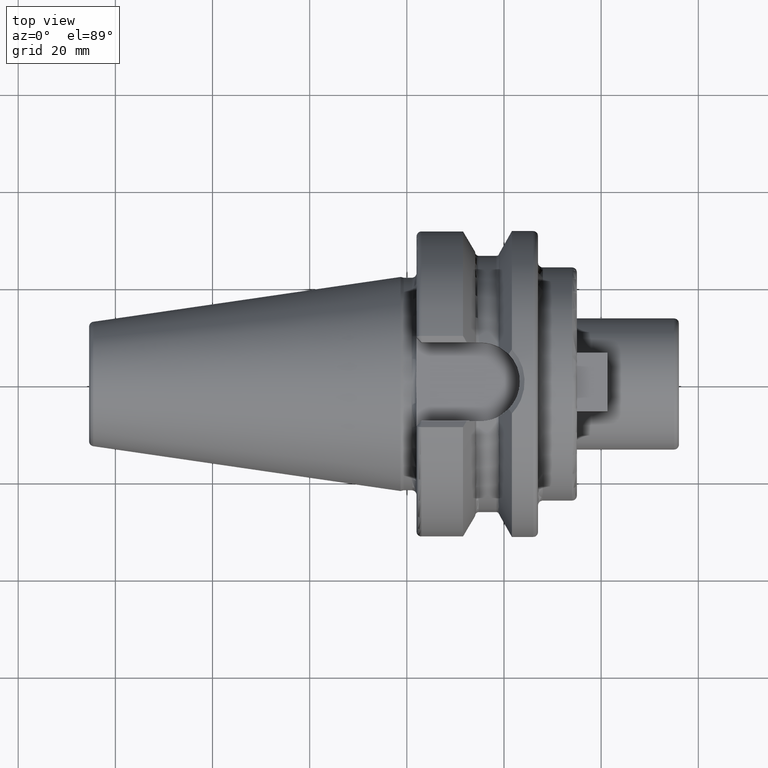
[diagram: clean part render]
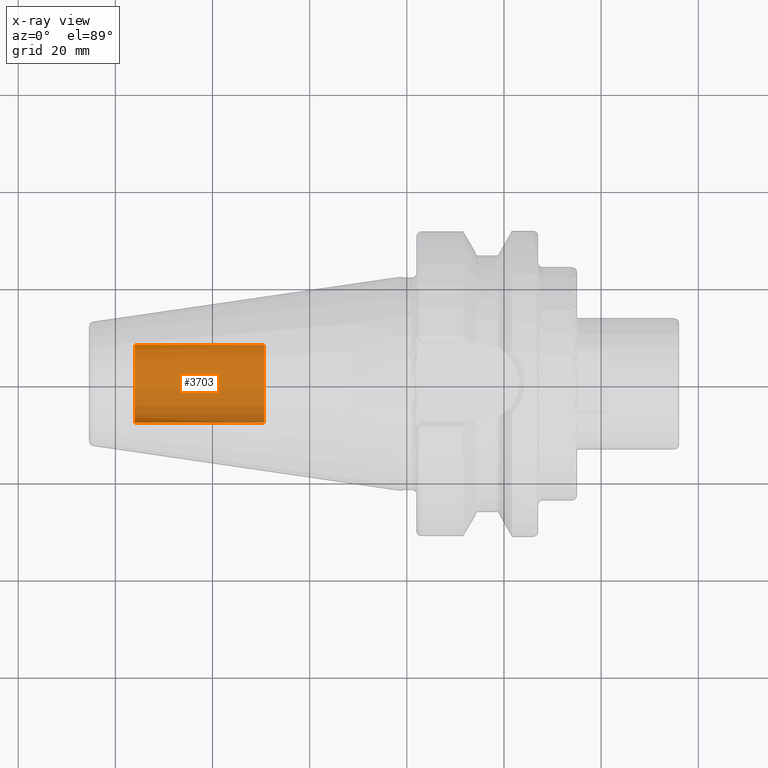
[diagram: x-ray — body ghosted, one internal face saturated and labeled with its STEP entity id]
A machine part, top view, then the same camera in x-ray: the body is ghosted and one INTERNAL B-rep face — a face not visible from any outside direction — is saturated and labeled: STEP entity #3703.
In plain terms, the highlighted cylindrical surface (partial cylindrical patch) has radius 8.0028 mm, axis along (1, 0, 0).
Its self-contained STEP definition (entity closure, byte-faithful):
#3638=CARTESIAN_POINT('',(-5.595E1,0.E0,0.E0));
#3639=DIRECTION('',(-1.E0,0.E0,0.E0));
#3640=DIRECTION('',(0.E0,1.E0,0.E0));
#3641=AXIS2_PLACEMENT_3D('',#3638,#3639,#3640);
#3643=DIRECTION('',(1.E0,0.E0,0.E0));
#3644=VECTOR('',#3643,2.655E1);
#3645=CARTESIAN_POINT('',(-5.595E1,-8.00275E0,0.E0));
#3646=LINE('',#3645,#3644);
#3652=DIRECTION('',(1.E0,0.E0,0.E0));
#3653=VECTOR('',#3652,2.655E1);
#3654=CARTESIAN_POINT('',(-5.595E1,8.00275E0,0.E0));
#3655=LINE('',#3654,#3653);
#3661=CARTESIAN_POINT('',(-2.94E1,0.E0,0.E0));
#3662=DIRECTION('',(1.E0,0.E0,0.E0));
#3663=DIRECTION('',(0.E0,-1.E0,0.E0));
#3664=AXIS2_PLACEMENT_3D('',#3661,#3662,#3663);
#3676=CARTESIAN_POINT('',(-5.595E1,8.00275E0,0.E0));
#3677=CARTESIAN_POINT('',(-5.595E1,-8.00275E0,0.E0));
#3678=VERTEX_POINT('',#3676);
#3679=VERTEX_POINT('',#3677);
#3680=CARTESIAN_POINT('',(-2.94E1,8.00275E0,0.E0));
#3681=CARTESIAN_POINT('',(-2.94E1,-8.00275E0,0.E0));
#3682=VERTEX_POINT('',#3680);
#3683=VERTEX_POINT('',#3681);
#3688=CARTESIAN_POINT('',(-5.595E1,0.E0,0.E0));
#3689=DIRECTION('',(1.E0,0.E0,0.E0));
#3690=DIRECTION('',(0.E0,1.E0,0.E0));
#3691=AXIS2_PLACEMENT_3D('',#3688,#3689,#3690);
#3692=CYLINDRICAL_SURFACE('',#3691,8.00275E0);
#3694=ORIENTED_EDGE('',*,*,#3693,.T.);
#3696=ORIENTED_EDGE('',*,*,#3695,.T.);
#3698=ORIENTED_EDGE('',*,*,#3697,.T.);
#3700=ORIENTED_EDGE('',*,*,#3699,.F.);
#3701=EDGE_LOOP('',(#3694,#3696,#3698,#3700));
#3702=FACE_OUTER_BOUND('',#3701,.F.);
#3703=ADVANCED_FACE('',(#3702),#3692,.T.);
#3642=CIRCLE('',#3641,8.00275E0);
#3665=CIRCLE('',#3664,8.00275E0);
#3693=EDGE_CURVE('',#3678,#3679,#3642,.T.);
#3695=EDGE_CURVE('',#3679,#3683,#3646,.T.);
#3697=EDGE_CURVE('',#3683,#3682,#3665,.T.);
#3699=EDGE_CURVE('',#3678,#3682,#3655,.T.);